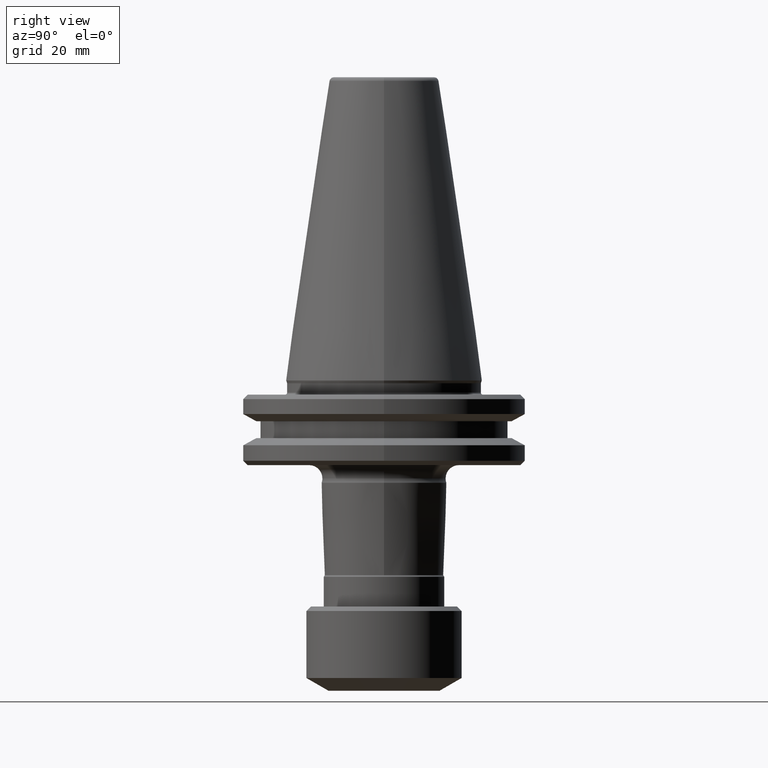
[diagram: clean part render]
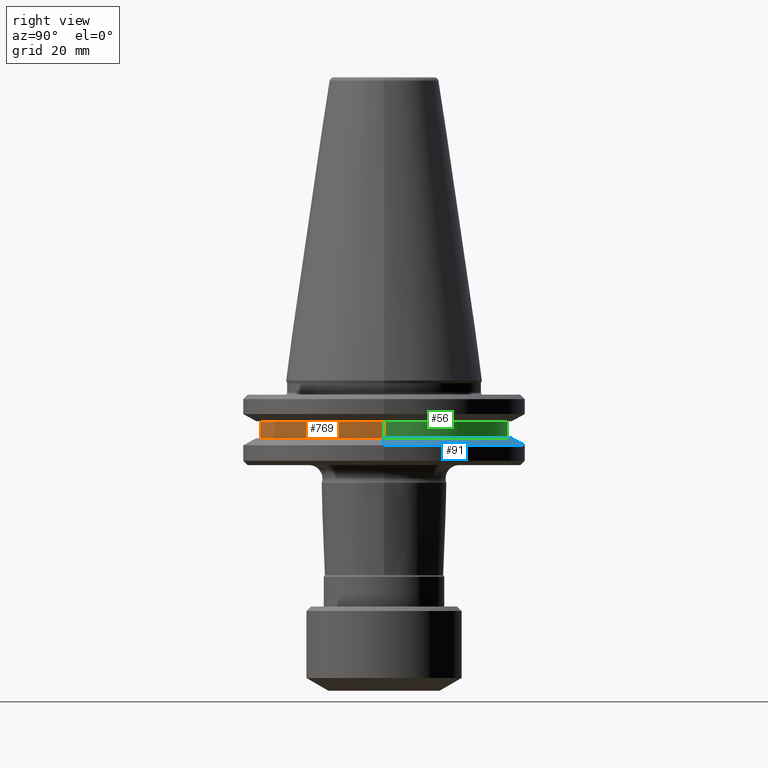
[diagram: same view with three faces highlighted in distinct colors, each labeled with its STEP entity id]
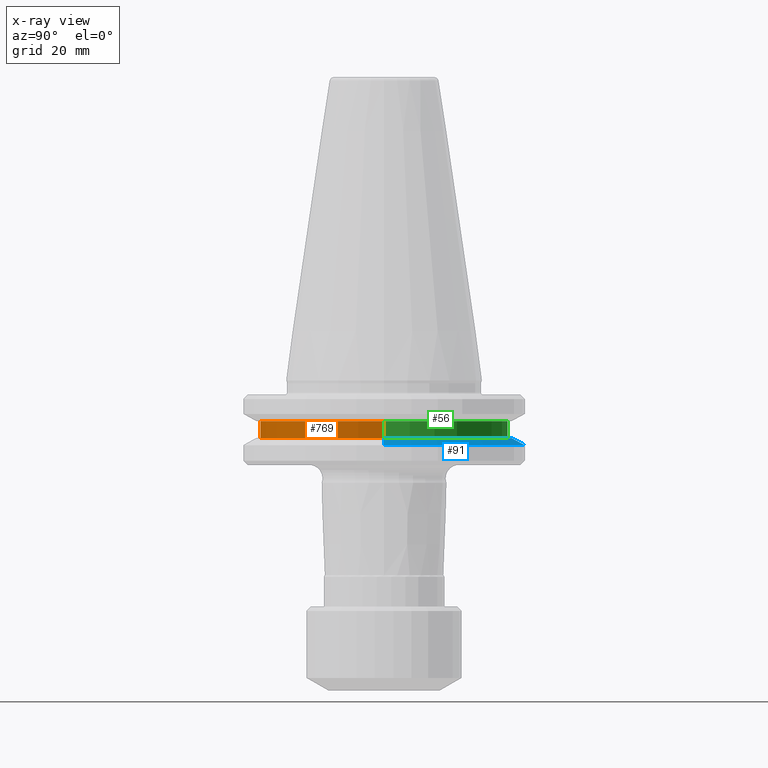
[diagram: x-ray of the same camera — body ghosted, the three highlighted faces saturated]
A machine part, right view with three faces highlighted in distinct colors.
The next image is the same camera in x-ray (body ghosted, the three faces saturated) — at least one of them is partly hidden behind the body in this view.
Their STEP definitions:

[orange] entity #769 — the highlighted cylindrical surface (partial cylindrical patch) has radius 28 mm, axis along (-0, -0, -1).
#63 = CARTESIAN_POINT ( 'NONE',  ( 27.99999999999559100, 3.429011037612048900E-015, 75.50000000000007100 ) ) ;
#106 = CIRCLE ( 'NONE', #281, 27.99999999999559100 ) ;
#114 = ORIENTED_EDGE ( 'NONE', *, *, #200, .T. ) ;
#171 = EDGE_CURVE ( 'NONE', #1057, #243, #106, .T. ) ;
#192 = DIRECTION ( 'NONE',  ( -0.0000000000000000000, -0.0000000000000000000, -1.000000000000000000 ) ) ;
#200 = EDGE_CURVE ( 'NONE', #243, #581, #1286, .T. ) ;
#241 = EDGE_CURVE ( 'NONE', #350, #581, #461, .T. ) ;
#243 = VERTEX_POINT ( 'NONE', #728 ) ;
#257 = DIRECTION ( 'NONE',  ( -0.0000000000000000000, -0.0000000000000000000, -1.000000000000000000 ) ) ;
#266 = DIRECTION ( 'NONE',  ( -0.0000000000000000000, -0.0000000000000000000, -1.000000000000000000 ) ) ;
#281 = AXIS2_PLACEMENT_3D ( 'NONE', #755, #538, #1283 ) ;
#311 = CARTESIAN_POINT ( 'NONE',  ( -27.99999999999559100, 0.0000000000000000000, 75.50000000000007100 ) ) ;
#313 = CARTESIAN_POINT ( 'NONE',  ( 0.0000000000000000000, 0.0000000000000000000, -57.04797495896346500 ) ) ;
#350 = VERTEX_POINT ( 'NONE', #63 ) ;
#351 = LINE ( 'NONE', #714, #495 ) ;
#358 = ORIENTED_EDGE ( 'NONE', *, *, #171, .T. ) ;
#373 = EDGE_LOOP ( 'NONE', ( #611, #358, #114, #698 ) ) ;
#382 = CARTESIAN_POINT ( 'NONE',  ( 0.0000000000000000000, 0.0000000000000000000, 75.50000000000007100 ) ) ;
#461 = CIRCLE ( 'NONE', #648, 27.99999999999559100 ) ;
#495 = VECTOR ( 'NONE', #257, 1000.000000000000000 ) ;
#538 = DIRECTION ( 'NONE',  ( -0.0000000000000000000, -0.0000000000000000000, -1.000000000000000000 ) ) ;
#571 = DIRECTION ( 'NONE',  ( -0.0000000000000000000, -0.0000000000000000000, -1.000000000000000000 ) ) ;
#581 = VERTEX_POINT ( 'NONE', #311 ) ;
#611 = ORIENTED_EDGE ( 'NONE', *, *, #688, .F. ) ;
#648 = AXIS2_PLACEMENT_3D ( 'NONE', #382, #266, #804 ) ;
#688 = EDGE_CURVE ( 'NONE', #1057, #350, #351, .T. ) ;
#698 = ORIENTED_EDGE ( 'NONE', *, *, #241, .F. ) ;
#714 = CARTESIAN_POINT ( 'NONE',  ( 27.99999999999559100, 3.429011037612048900E-015, -57.04797495896346500 ) ) ;
#728 = CARTESIAN_POINT ( 'NONE',  ( -27.99999999999559100, 0.0000000000000000000, 79.30000000000018200 ) ) ;
#755 = CARTESIAN_POINT ( 'NONE',  ( 0.0000000000000000000, 0.0000000000000000000, 79.30000000000018200 ) ) ;
#769 = ADVANCED_FACE ( 'NONE', ( #1251 ), #847, .T. ) ;
#804 = DIRECTION ( 'NONE',  ( -1.000000000000000000, 0.0000000000000000000, 0.0000000000000000000 ) ) ;
#838 = AXIS2_PLACEMENT_3D ( 'NONE', #313, #192, #1089 ) ;
#847 = CYLINDRICAL_SURFACE ( 'NONE', #838, 27.99999999999559100 ) ;
#951 = CARTESIAN_POINT ( 'NONE',  ( -27.99999999999559100, 0.0000000000000000000, -57.04797495896346500 ) ) ;
#1057 = VERTEX_POINT ( 'NONE', #1067 ) ;
#1067 = CARTESIAN_POINT ( 'NONE',  ( 27.99999999999559100, 3.429011037612048900E-015, 79.30000000000018200 ) ) ;
#1089 = DIRECTION ( 'NONE',  ( -1.000000000000000000, 0.0000000000000000000, 0.0000000000000000000 ) ) ;
#1251 = FACE_OUTER_BOUND ( 'NONE', #373, .T. ) ;
#1283 = DIRECTION ( 'NONE',  ( -1.000000000000000000, 0.0000000000000000000, 0.0000000000000000000 ) ) ;
#1286 = LINE ( 'NONE', #951, #1288 ) ;
#1288 = VECTOR ( 'NONE', #571, 1000.000000000000000 ) ;

[blue] entity #91 — the highlighted conical surface has half-angle 60 deg.
#10 = ORIENTED_EDGE ( 'NONE', *, *, #765, .T. ) ;
#39 = VERTEX_POINT ( 'NONE', #1153 ) ;
#91 = ADVANCED_FACE ( 'NONE', ( #1228 ), #1242, .T. ) ;
#131 = VERTEX_POINT ( 'NONE', #155 ) ;
#155 = CARTESIAN_POINT ( 'NONE',  ( 28.94089653437730500, 3.716245608910166200E-015, 75.50000000000007100 ) ) ;
#211 = VERTEX_POINT ( 'NONE', #1061 ) ;
#219 = ORIENTED_EDGE ( 'NONE', *, *, #1032, .F. ) ;
#302 = VECTOR ( 'NONE', #620, 1000.000000000000000 ) ;
#320 = CARTESIAN_POINT ( 'NONE',  ( 0.0000000000000000000, 0.0000000000000000000, 75.50000000000007100 ) ) ;
#327 = EDGE_CURVE ( 'NONE', #39, #579, #1222, .T. ) ;
#416 = CARTESIAN_POINT ( 'NONE',  ( 31.74999999999588600, 3.888253587292342400E-015, 73.87816335794367700 ) ) ;
#424 = DIRECTION ( 'NONE',  ( -1.000000000000000000, 0.0000000000000000000, 0.0000000000000000000 ) ) ;
#469 = ORIENTED_EDGE ( 'NONE', *, *, #327, .F. ) ;
#490 = AXIS2_PLACEMENT_3D ( 'NONE', #320, #1013, #424 ) ;
#579 = VERTEX_POINT ( 'NONE', #649 ) ;
#617 = AXIS2_PLACEMENT_3D ( 'NONE', #993, #1170, #819 ) ;
#620 = DIRECTION ( 'NONE',  ( -0.8660254037844388200, 0.0000000000000000000, -0.4999999999999997200 ) ) ;
#649 = CARTESIAN_POINT ( 'NONE',  ( 31.74999999999588600, 3.888253587292342400E-015, 73.87816335794367700 ) ) ;
#725 = CARTESIAN_POINT ( 'NONE',  ( -31.74999999999588600, 0.0000000000000000000, 73.87816335794367700 ) ) ;
#744 = ORIENTED_EDGE ( 'NONE', *, *, #753, .T. ) ;
#753 = EDGE_CURVE ( 'NONE', #131, #579, #934, .T. ) ;
#765 = EDGE_CURVE ( 'NONE', #211, #131, #784, .T. ) ;
#784 = CIRCLE ( 'NONE', #490, 28.94089653437730500 ) ;
#798 = VECTOR ( 'NONE', #1277, 1000.000000000000000 ) ;
#819 = DIRECTION ( 'NONE',  ( -1.000000000000000000, 0.0000000000000000000, 0.0000000000000000000 ) ) ;
#820 = DIRECTION ( 'NONE',  ( -1.000000000000000000, 0.0000000000000000000, 0.0000000000000000000 ) ) ;
#834 = DIRECTION ( 'NONE',  ( -0.0000000000000000000, -0.0000000000000000000, -1.000000000000000000 ) ) ;
#873 = EDGE_LOOP ( 'NONE', ( #10, #744, #469, #219 ) ) ;
#920 = CARTESIAN_POINT ( 'NONE',  ( 0.0000000000000000000, 0.0000000000000000000, 73.87816335794367700 ) ) ;
#934 = LINE ( 'NONE', #416, #798 ) ;
#941 = AXIS2_PLACEMENT_3D ( 'NONE', #920, #834, #820 ) ;
#993 = CARTESIAN_POINT ( 'NONE',  ( 0.0000000000000000000, 0.0000000000000000000, 73.87816335794367700 ) ) ;
#1013 = DIRECTION ( 'NONE',  ( -0.0000000000000000000, -0.0000000000000000000, -1.000000000000000000 ) ) ;
#1032 = EDGE_CURVE ( 'NONE', #211, #39, #1111, .T. ) ;
#1061 = CARTESIAN_POINT ( 'NONE',  ( -28.94089653437730500, 0.0000000000000000000, 75.50000000000007100 ) ) ;
#1111 = LINE ( 'NONE', #725, #302 ) ;
#1153 = CARTESIAN_POINT ( 'NONE',  ( -31.74999999999588600, 0.0000000000000000000, 73.87816335794367700 ) ) ;
#1170 = DIRECTION ( 'NONE',  ( -0.0000000000000000000, -0.0000000000000000000, -1.000000000000000000 ) ) ;
#1222 = CIRCLE ( 'NONE', #617, 31.74999999999588600 ) ;
#1228 = FACE_OUTER_BOUND ( 'NONE', #873, .T. ) ;
#1242 = CONICAL_SURFACE ( 'NONE', #941, 31.74999999999588600, 1.047197551196598100 ) ;
#1277 = DIRECTION ( 'NONE',  ( 0.8660254037844388200, 1.060575238724907200E-016, -0.4999999999999997200 ) ) ;

[green] entity #56 — the highlighted cylindrical surface (partial cylindrical patch) has radius 28 mm, axis along (-0, -0, -1).
#16 = CIRCLE ( 'NONE', #762, 27.99999999999559100 ) ;
#56 = ADVANCED_FACE ( 'NONE', ( #1173 ), #1178, .T. ) ;
#57 = CARTESIAN_POINT ( 'NONE',  ( 0.0000000000000000000, 0.0000000000000000000, -57.04797495896346500 ) ) ;
#63 = CARTESIAN_POINT ( 'NONE',  ( 27.99999999999559100, 3.429011037612048900E-015, 75.50000000000007100 ) ) ;
#68 = EDGE_CURVE ( 'NONE', #243, #1057, #1041, .T. ) ;
#122 = ORIENTED_EDGE ( 'NONE', *, *, #688, .T. ) ;
#173 = DIRECTION ( 'NONE',  ( -0.0000000000000000000, -0.0000000000000000000, -1.000000000000000000 ) ) ;
#200 = EDGE_CURVE ( 'NONE', #243, #581, #1286, .T. ) ;
#242 = ORIENTED_EDGE ( 'NONE', *, *, #200, .F. ) ;
#243 = VERTEX_POINT ( 'NONE', #728 ) ;
#257 = DIRECTION ( 'NONE',  ( -0.0000000000000000000, -0.0000000000000000000, -1.000000000000000000 ) ) ;
#285 = DIRECTION ( 'NONE',  ( -0.0000000000000000000, -0.0000000000000000000, -1.000000000000000000 ) ) ;
#311 = CARTESIAN_POINT ( 'NONE',  ( -27.99999999999559100, 0.0000000000000000000, 75.50000000000007100 ) ) ;
#350 = VERTEX_POINT ( 'NONE', #63 ) ;
#351 = LINE ( 'NONE', #714, #495 ) ;
#380 = AXIS2_PLACEMENT_3D ( 'NONE', #403, #173, #511 ) ;
#403 = CARTESIAN_POINT ( 'NONE',  ( 0.0000000000000000000, 0.0000000000000000000, 79.30000000000018200 ) ) ;
#480 = EDGE_LOOP ( 'NONE', ( #1106, #122, #665, #242 ) ) ;
#495 = VECTOR ( 'NONE', #257, 1000.000000000000000 ) ;
#511 = DIRECTION ( 'NONE',  ( -1.000000000000000000, 0.0000000000000000000, 0.0000000000000000000 ) ) ;
#571 = DIRECTION ( 'NONE',  ( -0.0000000000000000000, -0.0000000000000000000, -1.000000000000000000 ) ) ;
#581 = VERTEX_POINT ( 'NONE', #311 ) ;
#624 = DIRECTION ( 'NONE',  ( -0.0000000000000000000, -0.0000000000000000000, -1.000000000000000000 ) ) ;
#630 = DIRECTION ( 'NONE',  ( -1.000000000000000000, 0.0000000000000000000, 0.0000000000000000000 ) ) ;
#665 = ORIENTED_EDGE ( 'NONE', *, *, #1078, .F. ) ;
#688 = EDGE_CURVE ( 'NONE', #1057, #350, #351, .T. ) ;
#714 = CARTESIAN_POINT ( 'NONE',  ( 27.99999999999559100, 3.429011037612048900E-015, -57.04797495896346500 ) ) ;
#728 = CARTESIAN_POINT ( 'NONE',  ( -27.99999999999559100, 0.0000000000000000000, 79.30000000000018200 ) ) ;
#762 = AXIS2_PLACEMENT_3D ( 'NONE', #906, #285, #990 ) ;
#906 = CARTESIAN_POINT ( 'NONE',  ( 0.0000000000000000000, 0.0000000000000000000, 75.50000000000007100 ) ) ;
#951 = CARTESIAN_POINT ( 'NONE',  ( -27.99999999999559100, 0.0000000000000000000, -57.04797495896346500 ) ) ;
#990 = DIRECTION ( 'NONE',  ( -1.000000000000000000, 0.0000000000000000000, 0.0000000000000000000 ) ) ;
#1001 = AXIS2_PLACEMENT_3D ( 'NONE', #57, #624, #630 ) ;
#1041 = CIRCLE ( 'NONE', #380, 27.99999999999559100 ) ;
#1057 = VERTEX_POINT ( 'NONE', #1067 ) ;
#1067 = CARTESIAN_POINT ( 'NONE',  ( 27.99999999999559100, 3.429011037612048900E-015, 79.30000000000018200 ) ) ;
#1078 = EDGE_CURVE ( 'NONE', #581, #350, #16, .T. ) ;
#1106 = ORIENTED_EDGE ( 'NONE', *, *, #68, .T. ) ;
#1173 = FACE_OUTER_BOUND ( 'NONE', #480, .T. ) ;
#1178 = CYLINDRICAL_SURFACE ( 'NONE', #1001, 27.99999999999559100 ) ;
#1286 = LINE ( 'NONE', #951, #1288 ) ;
#1288 = VECTOR ( 'NONE', #571, 1000.000000000000000 ) ;